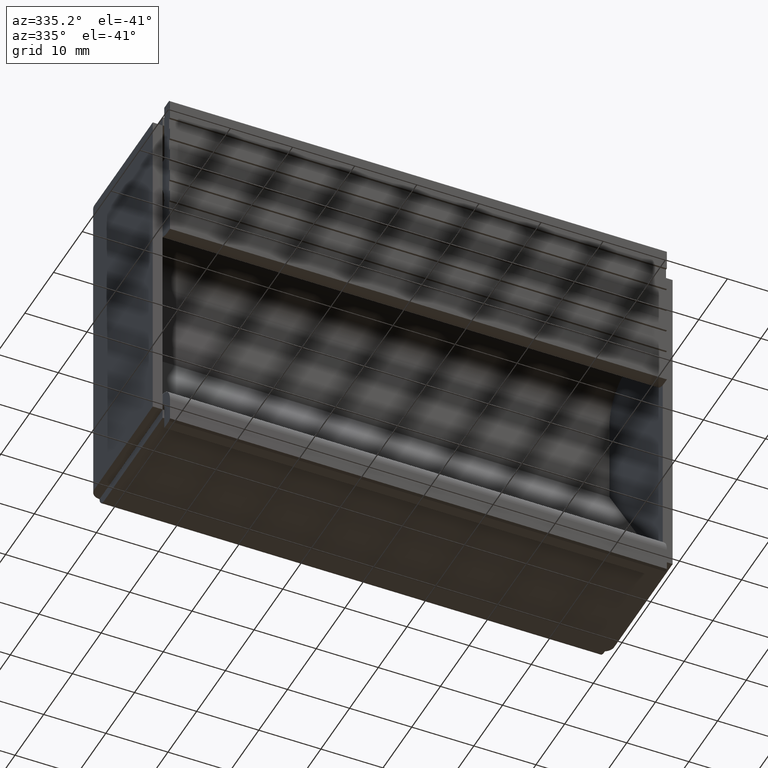
[diagram: clean part render]
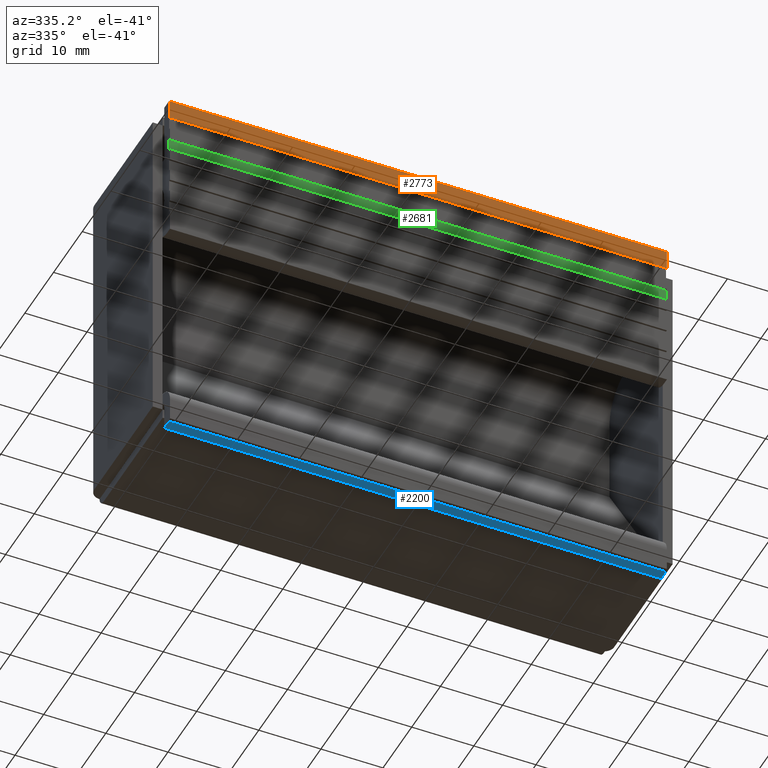
[diagram: same view with three faces highlighted in distinct colors, each labeled with its STEP entity id]
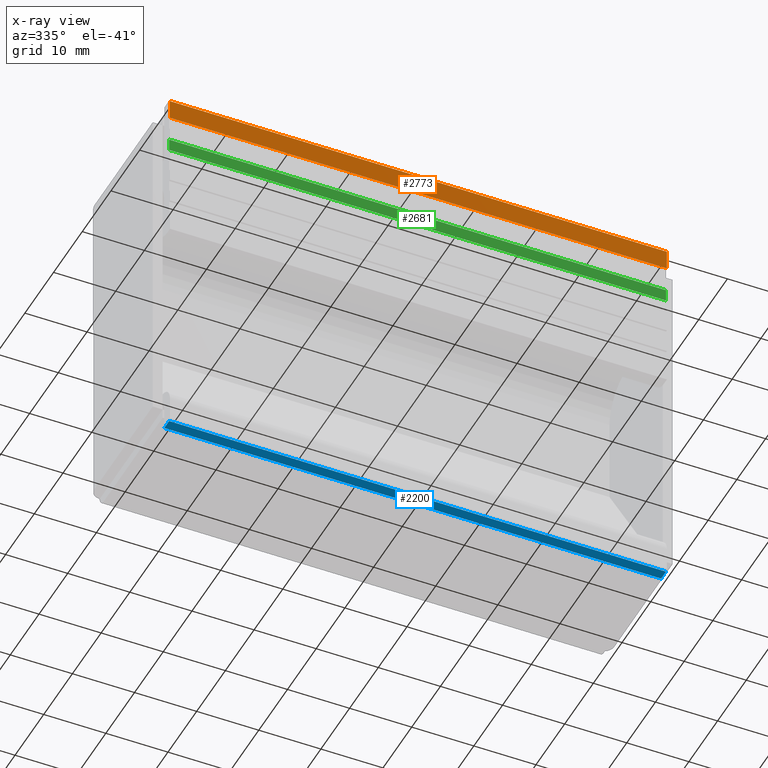
[diagram: x-ray of the same camera — body ghosted, the three highlighted faces saturated]
A machine part, auxiliary view with three faces highlighted in distinct colors.
The next image is the same camera in x-ray (body ghosted, the three faces saturated) — at least one of them is partly hidden behind the body in this view.
Their STEP definitions:

[orange] entity #2773 — the highlighted face is a freeform B-spline surface patch.
#1025=CARTESIAN_POINT('',(40.0,-2.0,61.700000000000003));
#1026=VERTEX_POINT('',#1025);
#1032=CARTESIAN_POINT('',(40.0,-2.0,58.500000000000000));
#1033=VERTEX_POINT('',#1032);
#1034=CARTESIAN_POINT('',(40.0,-2.0,61.700000000000003));
#1035=CARTESIAN_POINT('',(40.0,-2.0,58.500000000000000));
#1036=QUASI_UNIFORM_CURVE('',1,(#1034,#1035),.UNSPECIFIED.,.F.,.U.);
#1037=EDGE_CURVE('',#1026,#1033,#1036,.T.);
#1699=CARTESIAN_POINT('',(-40.0,-2.0,58.500000000000000));
#1700=VERTEX_POINT('',#1699);
#1706=CARTESIAN_POINT('',(-40.0,-2.0,61.700000000000003));
#1707=VERTEX_POINT('',#1706);
#1708=CARTESIAN_POINT('',(-40.0,-2.0,61.700000000000003));
#1709=CARTESIAN_POINT('',(-40.0,-2.0,58.500000000000000));
#1710=QUASI_UNIFORM_CURVE('',1,(#1708,#1709),.UNSPECIFIED.,.F.,.U.);
#1711=EDGE_CURVE('',#1707,#1700,#1710,.T.);
#1806=CARTESIAN_POINT('',(-40.0,-2.0,61.700000000000003));
#1807=CARTESIAN_POINT('',(40.0,-2.0,61.700000000000003));
#1808=QUASI_UNIFORM_CURVE('',1,(#1806,#1807),.UNSPECIFIED.,.F.,.U.);
#1809=EDGE_CURVE('',#1707,#1026,#1808,.T.);
#2752=CARTESIAN_POINT('',(-40.0,-2.0,58.500000000000000));
#2753=CARTESIAN_POINT('',(40.0,-2.0,58.500000000000000));
#2754=QUASI_UNIFORM_CURVE('',1,(#2752,#2753),.UNSPECIFIED.,.F.,.U.);
#2755=EDGE_CURVE('',#1700,#1033,#2754,.T.);
#2762=CARTESIAN_POINT('',(-43.995999844944478,-2.0,61.859840804859161));
#2763=CARTESIAN_POINT('',(-43.995999844944478,-2.0,58.340159881786342));
#2764=CARTESIAN_POINT('',(43.996001990711690,-2.0,61.859840804859161));
#2765=CARTESIAN_POINT('',(43.996001990711690,-2.0,58.340159881786342));
#2766=B_SPLINE_SURFACE_WITH_KNOTS('',1,1,((#2762,#2764),(#2763,#2765)),.UNSPECIFIED.,.F.,.F.,.U.,(2,2),(2,2),(0.0,3.519680923072819),(0.0,87.992001835656168),.UNSPECIFIED.);
#2767=ORIENTED_EDGE('',*,*,#1037,.F.);
#2768=ORIENTED_EDGE('',*,*,#1809,.F.);
#2769=ORIENTED_EDGE('',*,*,#1711,.T.);
#2770=ORIENTED_EDGE('',*,*,#2755,.T.);
#2771=EDGE_LOOP('',(#2767,#2768,#2769,#2770));
#2772=FACE_OUTER_BOUND('',#2771,.T.);
#2773=ADVANCED_FACE('',(#2772),#2766,.T.);

[blue] entity #2200 — the highlighted face is a freeform B-spline surface patch.
#1298=CARTESIAN_POINT('',(40.0,-1.699999999999905,-1.040915E-016));
#1299=VERTEX_POINT('',#1298);
#1305=CARTESIAN_POINT('',(40.0,0.0,0.0));
#1306=VERTEX_POINT('',#1305);
#1307=CARTESIAN_POINT('',(40.0,-1.699999999999905,-1.040915E-016));
#1308=CARTESIAN_POINT('',(40.0,0.0,0.0));
#1309=QUASI_UNIFORM_CURVE('',1,(#1307,#1308),.UNSPECIFIED.,.F.,.U.);
#1310=EDGE_CURVE('',#1299,#1306,#1309,.T.);
#1426=CARTESIAN_POINT('',(-40.0,0.0,0.0));
#1427=VERTEX_POINT('',#1426);
#1433=CARTESIAN_POINT('',(-40.0,-1.699999999999905,-1.040915E-016));
#1434=VERTEX_POINT('',#1433);
#1435=CARTESIAN_POINT('',(-40.0,-1.699999999999905,-1.040915E-016));
#1436=CARTESIAN_POINT('',(-40.0,0.0,0.0));
#1437=QUASI_UNIFORM_CURVE('',1,(#1435,#1436),.UNSPECIFIED.,.F.,.U.);
#1438=EDGE_CURVE('',#1434,#1427,#1437,.T.);
#2175=CARTESIAN_POINT('',(-40.0,0.0,0.0));
#2176=CARTESIAN_POINT('',(40.0,0.0,0.0));
#2177=QUASI_UNIFORM_CURVE('',1,(#2175,#2176),.UNSPECIFIED.,.F.,.U.);
#2178=EDGE_CURVE('',#1427,#1306,#2177,.T.);
#2185=CARTESIAN_POINT('',(-43.995999844944478,-1.784915044580122,-1.040915E-016));
#2186=CARTESIAN_POINT('',(-43.995999844944478,0.084915044580216,-1.040915E-016));
#2187=CARTESIAN_POINT('',(43.996001990711690,-1.784915044580122,-1.040915E-016));
#2188=CARTESIAN_POINT('',(43.996001990711690,0.084915044580216,-1.040915E-016));
#2189=B_SPLINE_SURFACE_WITH_KNOTS('',1,1,((#2185,#2187),(#2186,#2188)),.UNSPECIFIED.,.F.,.F.,.U.,(2,2),(2,2),(0.0,1.869830089160338),(0.0,87.992001835656168),.UNSPECIFIED.);
#2190=ORIENTED_EDGE('',*,*,#1310,.F.);
#2191=CARTESIAN_POINT('',(-40.0,-1.699999999999905,-1.040915E-016));
#2192=CARTESIAN_POINT('',(40.0,-1.699999999999905,-1.040915E-016));
#2193=QUASI_UNIFORM_CURVE('',1,(#2191,#2192),.UNSPECIFIED.,.F.,.U.);
#2194=EDGE_CURVE('',#1434,#1299,#2193,.T.);
#2195=ORIENTED_EDGE('',*,*,#2194,.F.);
#2196=ORIENTED_EDGE('',*,*,#1438,.T.);
#2197=ORIENTED_EDGE('',*,*,#2178,.T.);
#2198=EDGE_LOOP('',(#2190,#2195,#2196,#2197));
#2199=FACE_OUTER_BOUND('',#2198,.T.);
#2200=ADVANCED_FACE('',(#2199),#2189,.T.);

[green] entity #2681 — the highlighted face is a freeform B-spline surface patch.
#1067=CARTESIAN_POINT('',(40.0,-1.699999999999905,54.500000000000000));
#1068=VERTEX_POINT('',#1067);
#1074=CARTESIAN_POINT('',(40.0,-1.699999999999905,52.500000000000000));
#1075=VERTEX_POINT('',#1074);
#1076=CARTESIAN_POINT('',(40.0,-1.699999999999905,54.500000000000000));
#1077=CARTESIAN_POINT('',(40.0,-1.699999999999905,52.500000000000000));
#1078=QUASI_UNIFORM_CURVE('',1,(#1076,#1077),.UNSPECIFIED.,.F.,.U.);
#1079=EDGE_CURVE('',#1068,#1075,#1078,.T.);
#1657=CARTESIAN_POINT('',(-40.0,-1.699999999999905,52.500000000000000));
#1658=VERTEX_POINT('',#1657);
#1664=CARTESIAN_POINT('',(-40.0,-1.699999999999905,54.500000000000000));
#1665=VERTEX_POINT('',#1664);
#1666=CARTESIAN_POINT('',(-40.0,-1.699999999999905,54.500000000000000));
#1667=CARTESIAN_POINT('',(-40.0,-1.699999999999905,52.500000000000000));
#1668=QUASI_UNIFORM_CURVE('',1,(#1666,#1667),.UNSPECIFIED.,.F.,.U.);
#1669=EDGE_CURVE('',#1665,#1658,#1668,.T.);
#2656=CARTESIAN_POINT('',(-40.0,-1.699999999999905,52.500000000000000));
#2657=CARTESIAN_POINT('',(40.0,-1.699999999999905,52.500000000000000));
#2658=QUASI_UNIFORM_CURVE('',1,(#2656,#2657),.UNSPECIFIED.,.F.,.U.);
#2659=EDGE_CURVE('',#1658,#1075,#2658,.T.);
#2666=CARTESIAN_POINT('',(-43.995999844944478,-1.699999999999905,54.599899996123632));
#2667=CARTESIAN_POINT('',(-43.995999844944478,-1.699999999999905,52.400099950232217));
#2668=CARTESIAN_POINT('',(43.996001990711690,-1.699999999999905,54.599899996123632));
#2669=CARTESIAN_POINT('',(43.996001990711690,-1.699999999999905,52.400099950232210));
#2670=B_SPLINE_SURFACE_WITH_KNOTS('',1,1,((#2666,#2668),(#2667,#2669)),.UNSPECIFIED.,.F.,.F.,.U.,(2,2),(2,2),(0.0,2.199800045891415),(0.0,87.992001835656168),.UNSPECIFIED.);
#2671=ORIENTED_EDGE('',*,*,#1079,.F.);
#2672=CARTESIAN_POINT('',(-40.0,-1.699999999999905,54.500000000000000));
#2673=CARTESIAN_POINT('',(40.0,-1.699999999999905,54.500000000000000));
#2674=QUASI_UNIFORM_CURVE('',1,(#2672,#2673),.UNSPECIFIED.,.F.,.U.);
#2675=EDGE_CURVE('',#1665,#1068,#2674,.T.);
#2676=ORIENTED_EDGE('',*,*,#2675,.F.);
#2677=ORIENTED_EDGE('',*,*,#1669,.T.);
#2678=ORIENTED_EDGE('',*,*,#2659,.T.);
#2679=EDGE_LOOP('',(#2671,#2676,#2677,#2678));
#2680=FACE_OUTER_BOUND('',#2679,.T.);
#2681=ADVANCED_FACE('',(#2680),#2670,.T.);